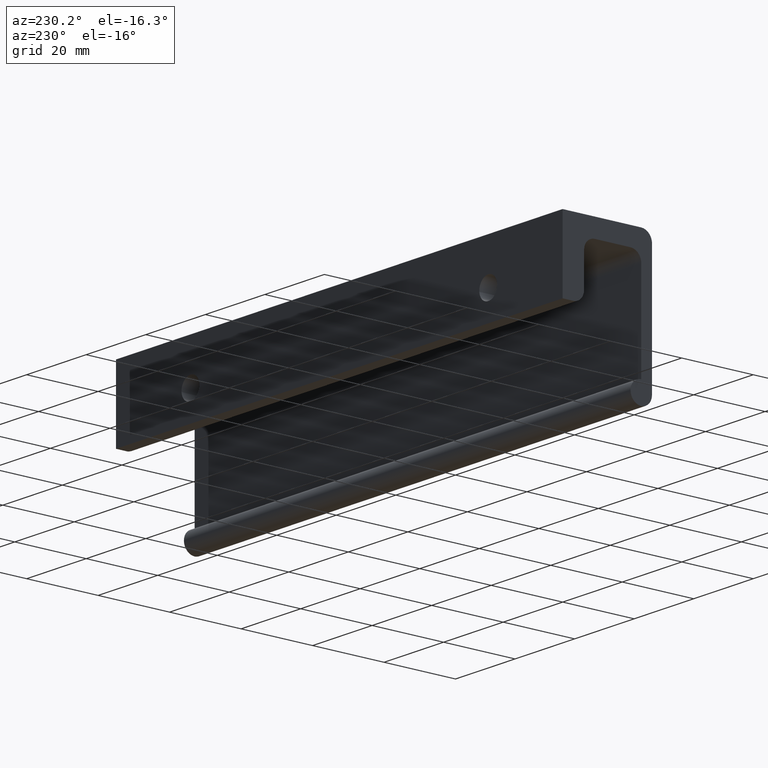
[diagram: clean part render]
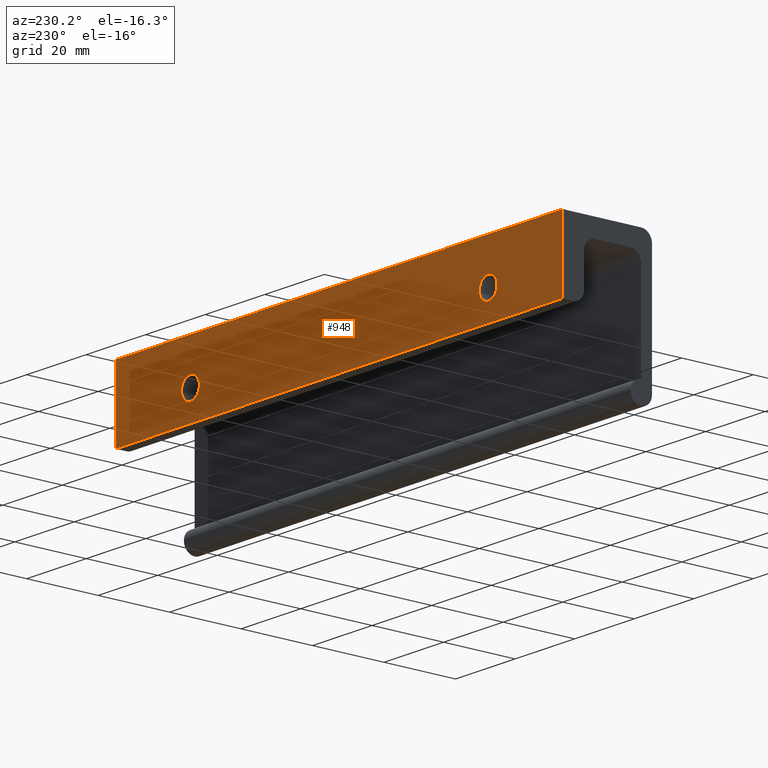
[diagram: same view with one face highlighted and labeled with its STEP entity id]
A machine part, auxiliary view. The second image highlights one B-rep face of the part: STEP entity #948.
In plain terms, the highlighted face is a freeform B-spline surface patch.
Its self-contained STEP definition (entity closure, byte-faithful):
#79=CARTESIAN_POINT('',(122.009247998808500,1.665335E-016,-11.764622712716140));
#80=VERTEX_POINT('',#79);
#86=CARTESIAN_POINT('',(125.0,0.0,-9.000000000000002));
#87=VERTEX_POINT('',#86);
#88=CARTESIAN_POINT('',(125.0,0.0,-9.000000000000002));
#89=CARTESIAN_POINT('',(122.226828525212000,0.0,-9.000000000000002));
#90=CARTESIAN_POINT('',(122.009247998808480,1.665335E-016,-11.764622712716138));
#98=(BOUNDED_CURVE()B_SPLINE_CURVE(2,(#88,#89,#90),.UNSPECIFIED.,.F.,.U.)B_SPLINE_CURVE_WITH_KNOTS((3,3),(0.0,0.236331300621266),.UNSPECIFIED.)CURVE()GEOMETRIC_REPRESENTATION_ITEM()RATIONAL_B_SPLINE_CURVE((1.0,0.723120658618670,0.969723356147815))REPRESENTATION_ITEM(''));
#99=EDGE_CURVE('',#87,#80,#98,.T.);
#101=CARTESIAN_POINT('',(127.990752001191500,1.665335E-016,-12.235377287283860));
#102=VERTEX_POINT('',#101);
#103=CARTESIAN_POINT('',(127.990752001191500,1.665335E-016,-12.235377287283866));
#104=CARTESIAN_POINT('',(127.999999999999960,0.0,-12.117870321123798));
#105=CARTESIAN_POINT('',(128.0,0.0,-12.0));
#106=CARTESIAN_POINT('',(128.0,0.0,-9.000000000000002));
#107=CARTESIAN_POINT('',(125.0,0.0,-9.000000000000002));
#115=(BOUNDED_CURVE()B_SPLINE_CURVE(2,(#103,#104,#105,#106,#107),.UNSPECIFIED.,.F.,.U.)B_SPLINE_CURVE_WITH_KNOTS((3,2,3),(0.736331300621266,0.750000000000000,1.0),.UNSPECIFIED.)CURVE()GEOMETRIC_REPRESENTATION_ITEM()RATIONAL_B_SPLINE_CURVE((0.969723356147814,0.983986122567877,1.0,0.707106781186548,1.0))REPRESENTATION_ITEM(''));
#116=EDGE_CURVE('',#102,#87,#115,.T.);
#192=CARTESIAN_POINT('',(125.0,0.0,-15.0));
#193=VERTEX_POINT('',#192);
#194=CARTESIAN_POINT('',(125.0,0.0,-15.0));
#195=CARTESIAN_POINT('',(127.773171474788000,0.0,-15.000000000000005));
#196=CARTESIAN_POINT('',(127.990752001191440,1.665335E-016,-12.235377287283860));
#204=(BOUNDED_CURVE()B_SPLINE_CURVE(2,(#194,#195,#196),.UNSPECIFIED.,.F.,.U.)B_SPLINE_CURVE_WITH_KNOTS((3,3),(0.500000000000000,0.736331300621266),.UNSPECIFIED.)CURVE()GEOMETRIC_REPRESENTATION_ITEM()RATIONAL_B_SPLINE_CURVE((1.0,0.723120658618670,0.969723356147815))REPRESENTATION_ITEM(''));
#205=EDGE_CURVE('',#193,#102,#204,.T.);
#207=CARTESIAN_POINT('',(122.009247998808480,1.665335E-016,-11.764622712716138));
#208=CARTESIAN_POINT('',(122.000000000000010,0.0,-11.882129678876204));
#209=CARTESIAN_POINT('',(122.0,0.0,-12.0));
#210=CARTESIAN_POINT('',(121.999999999999990,0.0,-14.999999999999995));
#211=CARTESIAN_POINT('',(125.0,0.0,-15.0));
#219=(BOUNDED_CURVE()B_SPLINE_CURVE(2,(#207,#208,#209,#210,#211),.UNSPECIFIED.,.F.,.U.)B_SPLINE_CURVE_WITH_KNOTS((3,2,3),(0.236331300621266,0.250000000000000,0.500000000000000),.UNSPECIFIED.)CURVE()GEOMETRIC_REPRESENTATION_ITEM()RATIONAL_B_SPLINE_CURVE((0.969723356147815,0.983986122567877,1.0,0.707106781186548,1.0))REPRESENTATION_ITEM(''));
#220=EDGE_CURVE('',#80,#193,#219,.T.);
#261=CARTESIAN_POINT('',(22.009247998808519,1.665335E-016,-11.764622712716140));
#262=VERTEX_POINT('',#261);
#268=CARTESIAN_POINT('',(25.0,0.0,-9.000000000000002));
#269=VERTEX_POINT('',#268);
#270=CARTESIAN_POINT('',(25.0,0.0,-9.000000000000002));
#271=CARTESIAN_POINT('',(22.226828525212010,0.0,-9.000000000000002));
#272=CARTESIAN_POINT('',(22.009247998808515,1.665335E-016,-11.764622712716147));
#280=(BOUNDED_CURVE()B_SPLINE_CURVE(2,(#270,#271,#272),.UNSPECIFIED.,.F.,.U.)B_SPLINE_CURVE_WITH_KNOTS((3,3),(0.0,0.236331300621266),.UNSPECIFIED.)CURVE()GEOMETRIC_REPRESENTATION_ITEM()RATIONAL_B_SPLINE_CURVE((1.0,0.723120658618670,0.969723356147815))REPRESENTATION_ITEM(''));
#281=EDGE_CURVE('',#269,#262,#280,.T.);
#283=CARTESIAN_POINT('',(27.990752001191488,1.665335E-016,-12.235377287283860));
#284=VERTEX_POINT('',#283);
#285=CARTESIAN_POINT('',(27.990752001191488,1.665335E-016,-12.235377287283860));
#286=CARTESIAN_POINT('',(27.999999999999993,0.0,-12.117870321123798));
#287=CARTESIAN_POINT('',(28.0,0.0,-12.0));
#288=CARTESIAN_POINT('',(27.999999999999996,0.0,-9.000000000000002));
#289=CARTESIAN_POINT('',(25.0,0.0,-9.000000000000002));
#297=(BOUNDED_CURVE()B_SPLINE_CURVE(2,(#285,#286,#287,#288,#289),.UNSPECIFIED.,.F.,.U.)B_SPLINE_CURVE_WITH_KNOTS((3,2,3),(0.736331300621266,0.750000000000000,1.0),.UNSPECIFIED.)CURVE()GEOMETRIC_REPRESENTATION_ITEM()RATIONAL_B_SPLINE_CURVE((0.969723356147815,0.983986122567877,1.0,0.707106781186548,1.0))REPRESENTATION_ITEM(''));
#298=EDGE_CURVE('',#284,#269,#297,.T.);
#374=CARTESIAN_POINT('',(25.0,0.0,-15.0));
#375=VERTEX_POINT('',#374);
#376=CARTESIAN_POINT('',(25.0,0.0,-15.0));
#377=CARTESIAN_POINT('',(27.773171474788001,0.0,-15.000000000000005));
#378=CARTESIAN_POINT('',(27.990752001191485,1.665335E-016,-12.235377287283860));
#386=(BOUNDED_CURVE()B_SPLINE_CURVE(2,(#376,#377,#378),.UNSPECIFIED.,.F.,.U.)B_SPLINE_CURVE_WITH_KNOTS((3,3),(0.500000000000000,0.736331300621266),.UNSPECIFIED.)CURVE()GEOMETRIC_REPRESENTATION_ITEM()RATIONAL_B_SPLINE_CURVE((1.0,0.723120658618670,0.969723356147815))REPRESENTATION_ITEM(''));
#387=EDGE_CURVE('',#375,#284,#386,.T.);
#389=CARTESIAN_POINT('',(22.009247998808515,1.665335E-016,-11.764622712716147));
#390=CARTESIAN_POINT('',(22.000000000000007,0.0,-11.882129678876204));
#391=CARTESIAN_POINT('',(22.0,0.0,-12.0));
#392=CARTESIAN_POINT('',(22.000000000000007,0.0,-14.999999999999995));
#393=CARTESIAN_POINT('',(25.0,0.0,-15.0));
#401=(BOUNDED_CURVE()B_SPLINE_CURVE(2,(#389,#390,#391,#392,#393),.UNSPECIFIED.,.F.,.U.)B_SPLINE_CURVE_WITH_KNOTS((3,2,3),(0.236331300621266,0.250000000000000,0.500000000000000),.UNSPECIFIED.)CURVE()GEOMETRIC_REPRESENTATION_ITEM()RATIONAL_B_SPLINE_CURVE((0.969723356147815,0.983986122567877,1.0,0.707106781186548,1.0))REPRESENTATION_ITEM(''));
#402=EDGE_CURVE('',#262,#375,#401,.T.);
#413=CARTESIAN_POINT('',(0.0,0.0,0.0));
#414=VERTEX_POINT('',#413);
#415=CARTESIAN_POINT('',(0.0,0.0,-20.0));
#416=VERTEX_POINT('',#415);
#417=CARTESIAN_POINT('',(0.0,0.0,0.0));
#418=CARTESIAN_POINT('',(0.0,0.0,-20.0));
#419=QUASI_UNIFORM_CURVE('',1,(#417,#418),.UNSPECIFIED.,.F.,.U.);
#420=EDGE_CURVE('',#414,#416,#419,.T.);
#549=CARTESIAN_POINT('',(150.0,0.0,0.0));
#550=VERTEX_POINT('',#549);
#551=CARTESIAN_POINT('',(150.0,0.0,-20.0));
#552=VERTEX_POINT('',#551);
#553=CARTESIAN_POINT('',(150.0,0.0,0.0));
#554=CARTESIAN_POINT('',(150.0,0.0,-20.0));
#555=QUASI_UNIFORM_CURVE('',1,(#553,#554),.UNSPECIFIED.,.F.,.U.);
#556=EDGE_CURVE('',#550,#552,#555,.T.);
#692=CARTESIAN_POINT('',(150.0,0.0,0.0));
#693=CARTESIAN_POINT('',(0.0,0.0,0.0));
#694=QUASI_UNIFORM_CURVE('',1,(#692,#693),.UNSPECIFIED.,.F.,.U.);
#695=EDGE_CURVE('',#550,#414,#694,.T.);
#891=CARTESIAN_POINT('',(150.0,0.0,-20.0));
#892=CARTESIAN_POINT('',(0.0,0.0,-20.0));
#893=QUASI_UNIFORM_CURVE('',1,(#891,#892),.UNSPECIFIED.,.F.,.U.);
#894=EDGE_CURVE('',#552,#416,#893,.T.);
#925=CARTESIAN_POINT('',(-7.492499709270897,0.0,-20.998999961236120));
#926=CARTESIAN_POINT('',(-7.492499709270897,0.0,0.999000497677922));
#927=CARTESIAN_POINT('',(157.492503732584400,0.0,-20.998999961236120));
#928=CARTESIAN_POINT('',(157.492503732584400,0.0,0.999000497677922));
#929=B_SPLINE_SURFACE_WITH_KNOTS('',1,1,((#925,#927),(#926,#928)),.UNSPECIFIED.,.F.,.F.,.U.,(2,2),(2,2),(0.0,21.998000458914039),(0.0,164.985003441855300),.UNSPECIFIED.);
#930=ORIENTED_EDGE('',*,*,#420,.F.);
#931=ORIENTED_EDGE('',*,*,#695,.F.);
#932=ORIENTED_EDGE('',*,*,#556,.T.);
#933=ORIENTED_EDGE('',*,*,#894,.T.);
#934=EDGE_LOOP('',(#930,#931,#932,#933));
#935=FACE_OUTER_BOUND('',#934,.T.);
#936=ORIENTED_EDGE('',*,*,#387,.T.);
#937=ORIENTED_EDGE('',*,*,#298,.T.);
#938=ORIENTED_EDGE('',*,*,#281,.T.);
#939=ORIENTED_EDGE('',*,*,#402,.T.);
#940=EDGE_LOOP('',(#936,#937,#938,#939));
#941=FACE_BOUND('',#940,.T.);
#942=ORIENTED_EDGE('',*,*,#205,.T.);
#943=ORIENTED_EDGE('',*,*,#116,.T.);
#944=ORIENTED_EDGE('',*,*,#99,.T.);
#945=ORIENTED_EDGE('',*,*,#220,.T.);
#946=EDGE_LOOP('',(#942,#943,#944,#945));
#947=FACE_BOUND('',#946,.T.);
#948=ADVANCED_FACE('',(#935,#941,#947),#929,.T.);